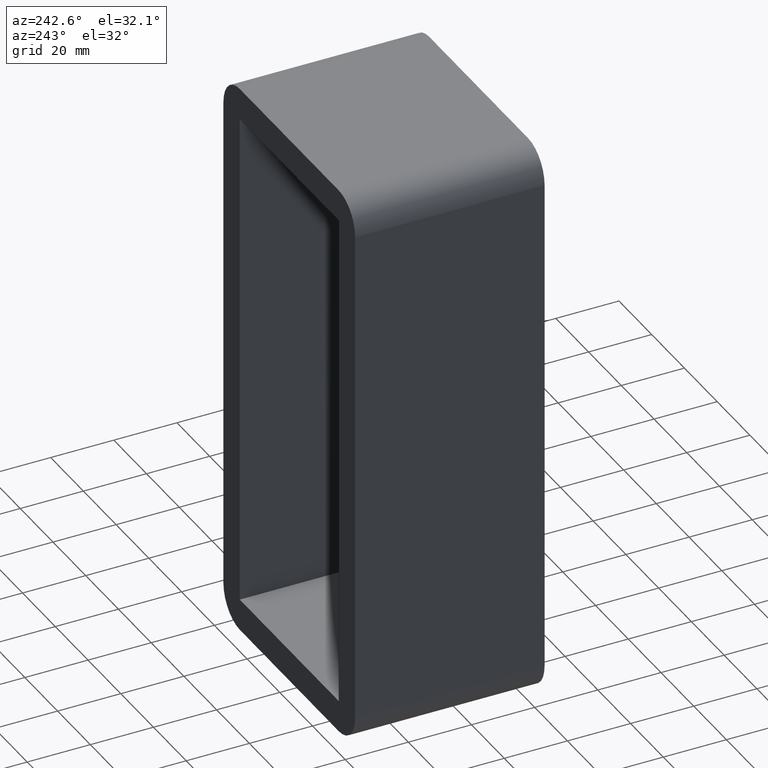
[diagram: clean part render]
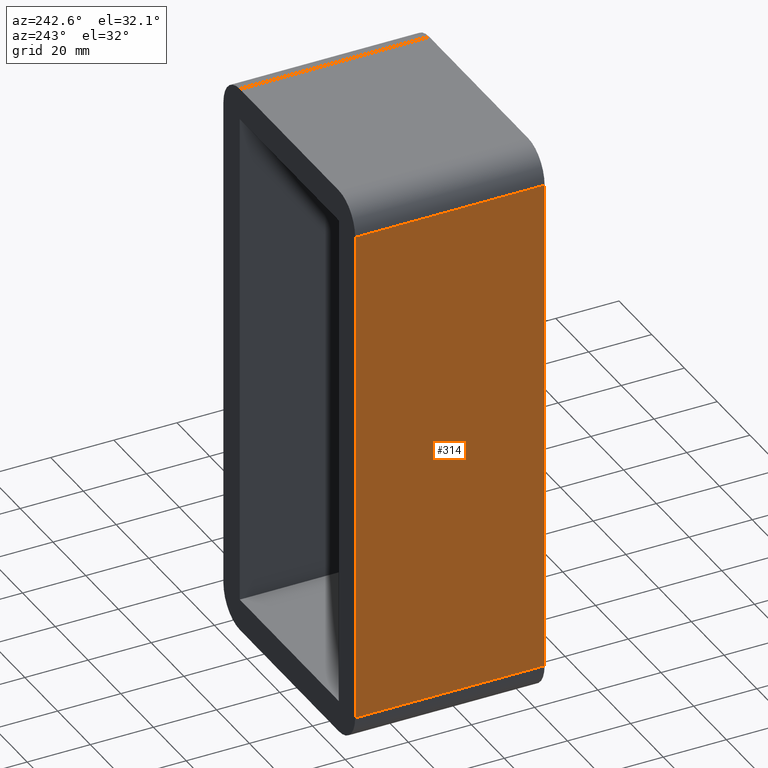
[diagram: same view with one face highlighted and labeled with its STEP entity id]
A machine part, auxiliary view. The second image highlights one B-rep face of the part: STEP entity #314.
In plain terms, the highlighted planar face has unit normal (-1, 0, 0).
Its self-contained STEP definition (entity closure, byte-faithful):
#141=CARTESIAN_POINT('',(-40.250000000000014,-3.0,79.750000000000014));
#142=VERTEX_POINT('',#141);
#150=CARTESIAN_POINT('',(-40.250000000000014,-3.0,-79.750000000000014));
#151=VERTEX_POINT('',#150);
#152=CARTESIAN_POINT('',(-40.250000000000014,-3.0,79.750000000000014));
#153=DIRECTION('',(0.0,0.0,-1.0));
#154=VECTOR('',#153,159.50000000000003);
#155=LINE('',#152,#154);
#156=EDGE_CURVE('',#142,#151,#155,.T.);
#264=CARTESIAN_POINT('',(-40.250000000000014,57.0,-79.750000000000014));
#265=VERTEX_POINT('',#264);
#282=CARTESIAN_POINT('',(-40.250000000000014,-3.0,-79.750000000000014));
#283=DIRECTION('',(0.0,1.0,0.0));
#284=VECTOR('',#283,60.0);
#285=LINE('',#282,#284);
#286=EDGE_CURVE('',#151,#265,#285,.T.);
#291=CARTESIAN_POINT('',(-40.250000000000014,0.0,-89.750000000000014));
#292=DIRECTION('',(-1.0,0.0,0.0));
#293=DIRECTION('',(0.0,0.0,1.0));
#294=AXIS2_PLACEMENT_3D('',#291,#292,#293);
#295=PLANE('',#294);
#296=ORIENTED_EDGE('',*,*,#286,.F.);
#297=ORIENTED_EDGE('',*,*,#156,.F.);
#298=CARTESIAN_POINT('',(-40.250000000000014,57.0,79.750000000000014));
#299=VERTEX_POINT('',#298);
#300=CARTESIAN_POINT('',(-40.250000000000014,57.0,79.750000000000014));
#301=DIRECTION('',(0.0,-1.0,0.0));
#302=VECTOR('',#301,60.0);
#303=LINE('',#300,#302);
#304=EDGE_CURVE('',#299,#142,#303,.T.);
#305=ORIENTED_EDGE('',*,*,#304,.F.);
#306=CARTESIAN_POINT('',(-40.250000000000014,57.0,-79.750000000000014));
#307=DIRECTION('',(0.0,0.0,1.0));
#308=VECTOR('',#307,159.50000000000003);
#309=LINE('',#306,#308);
#310=EDGE_CURVE('',#265,#299,#309,.T.);
#311=ORIENTED_EDGE('',*,*,#310,.F.);
#312=EDGE_LOOP('',(#296,#297,#305,#311));
#313=FACE_OUTER_BOUND('',#312,.T.);
#314=ADVANCED_FACE('',(#313),#295,.T.);